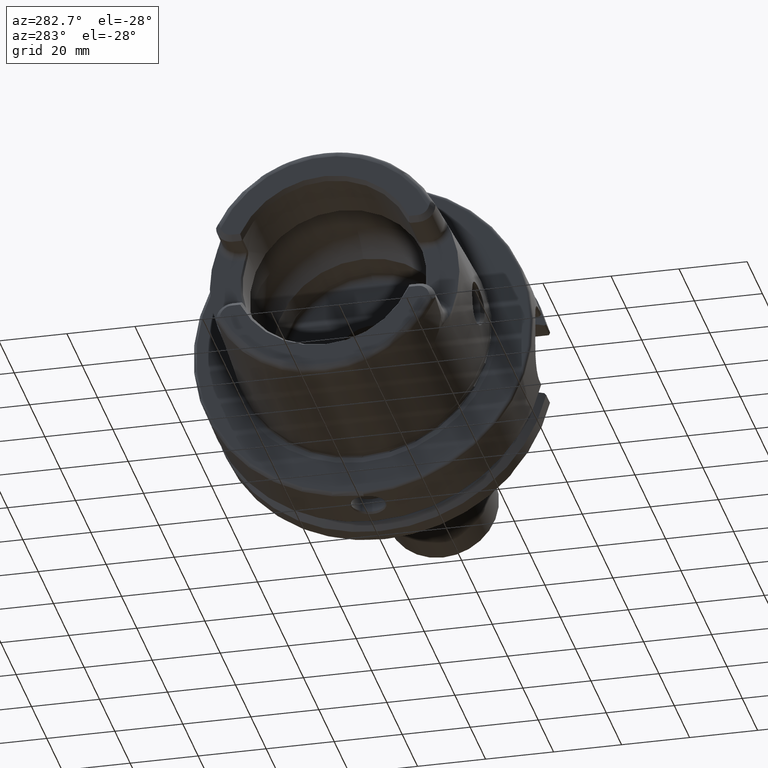
[diagram: clean part render]
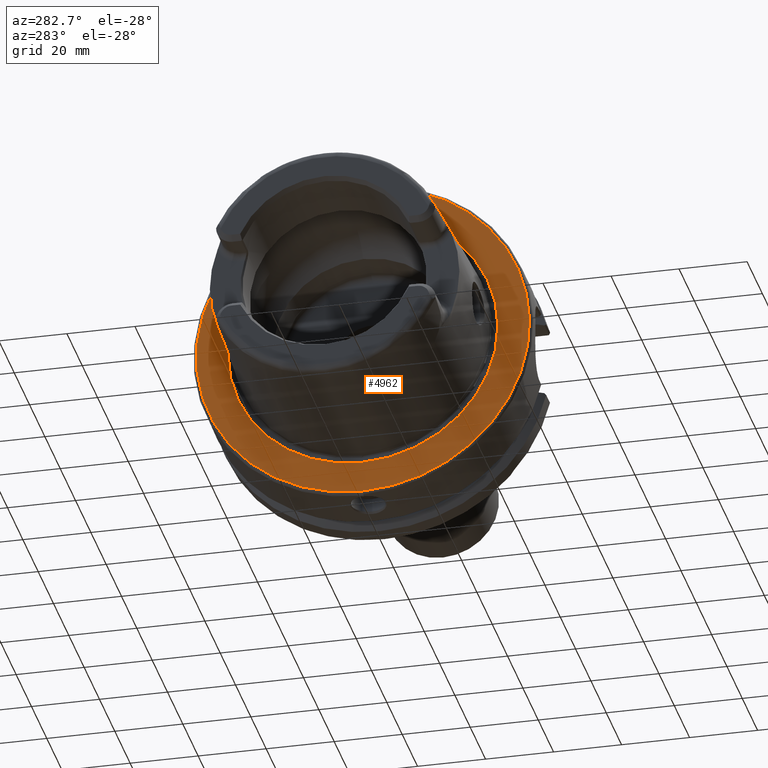
[diagram: same view with one face highlighted and labeled with its STEP entity id]
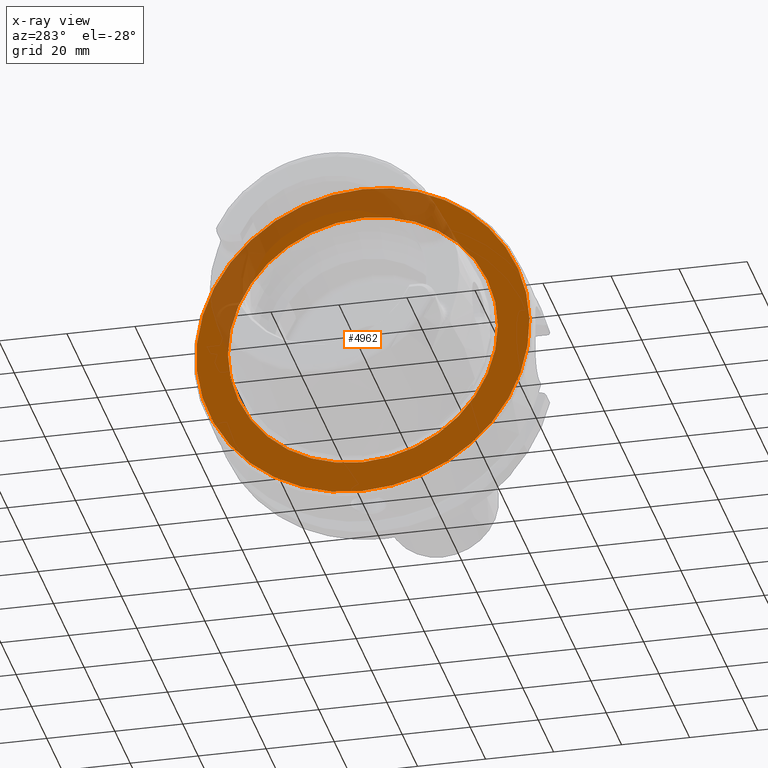
[diagram: x-ray of the same camera — body ghosted, the highlighted face saturated]
A machine part, auxiliary view. The second image highlights one B-rep face of the part: STEP entity #4962.
The next image is the same camera in x-ray: the body ghosted, the highlighted face saturated — about 25% of this face is hidden behind the body in this view.
In plain terms, the highlighted planar face has unit normal (1, 0, 0).
Its self-contained STEP definition (entity closure, byte-faithful):
#1277=CARTESIAN_POINT('',(0.E0,0.E0,0.E0));
#1278=DIRECTION('',(1.E0,0.E0,0.E0));
#1279=DIRECTION('',(0.E0,0.E0,1.E0));
#1280=AXIS2_PLACEMENT_3D('',#1277,#1278,#1279);
#1282=CARTESIAN_POINT('',(0.E0,0.E0,0.E0));
#1283=DIRECTION('',(1.E0,0.E0,0.E0));
#1284=DIRECTION('',(0.E0,-9.795626133661E-1,2.011394702573E-1));
#1285=AXIS2_PLACEMENT_3D('',#1282,#1283,#1284);
#1287=CARTESIAN_POINT('',(0.E0,0.E0,0.E0));
#1288=DIRECTION('',(1.E0,0.E0,0.E0));
#1289=DIRECTION('',(0.E0,0.E0,-1.E0));
#1290=AXIS2_PLACEMENT_3D('',#1287,#1288,#1289);
#1292=CARTESIAN_POINT('',(0.E0,0.E0,0.E0));
#1293=DIRECTION('',(1.E0,0.E0,0.E0));
#1294=DIRECTION('',(0.E0,7.117313516455E-3,-9.999746716034E-1));
#1295=AXIS2_PLACEMENT_3D('',#1292,#1293,#1294);
#1297=CARTESIAN_POINT('',(-3.064215547965E-13,0.E0,0.E0));
#1298=DIRECTION('',(-1.E0,0.E0,0.E0));
#1299=DIRECTION('',(0.E0,0.E0,1.E0));
#1300=AXIS2_PLACEMENT_3D('',#1297,#1298,#1299);
#1302=CARTESIAN_POINT('',(-3.064215547965E-13,0.E0,0.E0));
#1303=DIRECTION('',(-1.E0,0.E0,0.E0));
#1304=DIRECTION('',(0.E0,0.E0,-1.E0));
#1305=AXIS2_PLACEMENT_3D('',#1302,#1303,#1304);
#3211=CARTESIAN_POINT('',(-2.036889175846E-13,-4.958606889997E-13,3.96822E1));
#3212=VERTEX_POINT('',#3211);
#3213=CARTESIAN_POINT('',(-3.064215547965E-13,0.E0,-3.96822E1));
#3214=VERTEX_POINT('',#3213);
#3217=CARTESIAN_POINT('',(0.E0,-4.799856805494E1,9.855834042608E0));
#3218=CARTESIAN_POINT('',(0.E0,9.947598300641E-14,-4.9E1));
#3219=VERTEX_POINT('',#3217);
#3220=VERTEX_POINT('',#3218);
#3221=CARTESIAN_POINT('',(0.E0,4.429419482393E-14,4.9E1));
#3222=VERTEX_POINT('',#3221);
#3223=CARTESIAN_POINT('',(0.E0,3.487483623063E-1,-4.899875890857E1));
#3224=VERTEX_POINT('',#3223);
#4943=CARTESIAN_POINT('',(0.E0,0.E0,0.E0));
#4944=DIRECTION('',(1.E0,0.E0,0.E0));
#4945=DIRECTION('',(0.E0,0.E0,1.E0));
#4946=AXIS2_PLACEMENT_3D('',#4943,#4944,#4945);
#4947=PLANE('',#4946);
#4949=ORIENTED_EDGE('',*,*,#4948,.T.);
#4951=ORIENTED_EDGE('',*,*,#4950,.T.);
#4953=ORIENTED_EDGE('',*,*,#4952,.T.);
#4955=ORIENTED_EDGE('',*,*,#4954,.T.);
#4956=EDGE_LOOP('',(#4949,#4951,#4953,#4955));
#4957=FACE_OUTER_BOUND('',#4956,.F.);
#4958=ORIENTED_EDGE('',*,*,#4898,.T.);
#4959=ORIENTED_EDGE('',*,*,#4881,.T.);
#4960=EDGE_LOOP('',(#4958,#4959));
#4961=FACE_BOUND('',#4960,.F.);
#4962=ADVANCED_FACE('',(#4957,#4961),#4947,.F.);
#1281=CIRCLE('',#1280,4.9E1);
#1286=CIRCLE('',#1285,4.9E1);
#1291=CIRCLE('',#1290,4.9E1);
#1296=CIRCLE('',#1295,4.9E1);
#1301=CIRCLE('',#1300,3.96822E1);
#1306=CIRCLE('',#1305,3.96822E1);
#4881=EDGE_CURVE('',#3214,#3212,#1306,.T.);
#4898=EDGE_CURVE('',#3212,#3214,#1301,.T.);
#4948=EDGE_CURVE('',#3222,#3219,#1281,.T.);
#4950=EDGE_CURVE('',#3219,#3220,#1286,.T.);
#4952=EDGE_CURVE('',#3220,#3224,#1291,.T.);
#4954=EDGE_CURVE('',#3224,#3222,#1296,.T.);